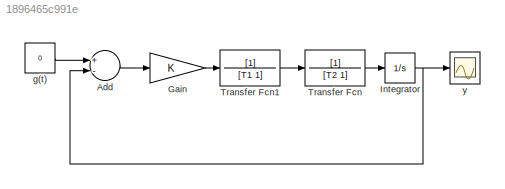
MODEL slx_1896465c991e
KIND model
BLOCK [Sum] Add
  InputSameDT = off
  Inputs = +-
  OutDataTypeStr = Inherit: Inherit via internal rule
  Ports = [2, 1]
  SaturateOnIntegerOverflow = off
BLOCK [Gain] Gain
  Gain = K
  OutDataTypeStr = Inherit: Inherit via internal rule
  ParamDataTypeStr = Inherit: Inherit via internal rule
  SaturateOnIntegerOverflow = off
BLOCK [Integrator] Integrator
  InitialCondition = 1
  Ports = [1, 1]
BLOCK [TransferFcn] Transfer Fcn
  Denominator = [T2 1]
BLOCK [TransferFcn] Transfer Fcn1
  Denominator = [T1  1]
BLOCK [Constant] g(t)
  Value = 0
BLOCK [Scope] y
  DataFormat = StructureWithTime
  Floating = off
  NumInputPorts = 1
  Ports = [1]
  SampleInput = on
  SampleTime = 0
  ShowLegends = off
  TimeRange = 20
  YMax = 1.4
  YMin = 0
LINE Add:1 -> Gain:1
LINE Gain:1 -> Transfer Fcn1:1
NET Integrator:1 -> Add:2, y:1
LINE Transfer Fcn1:1 -> Transfer Fcn:1
LINE Transfer Fcn:1 -> Integrator:1
LINE g(t):1 -> Add:1
note: NET lines group one-source signal fan-out (src -> all destinations, sorted); 1:1 wires keep LINE
